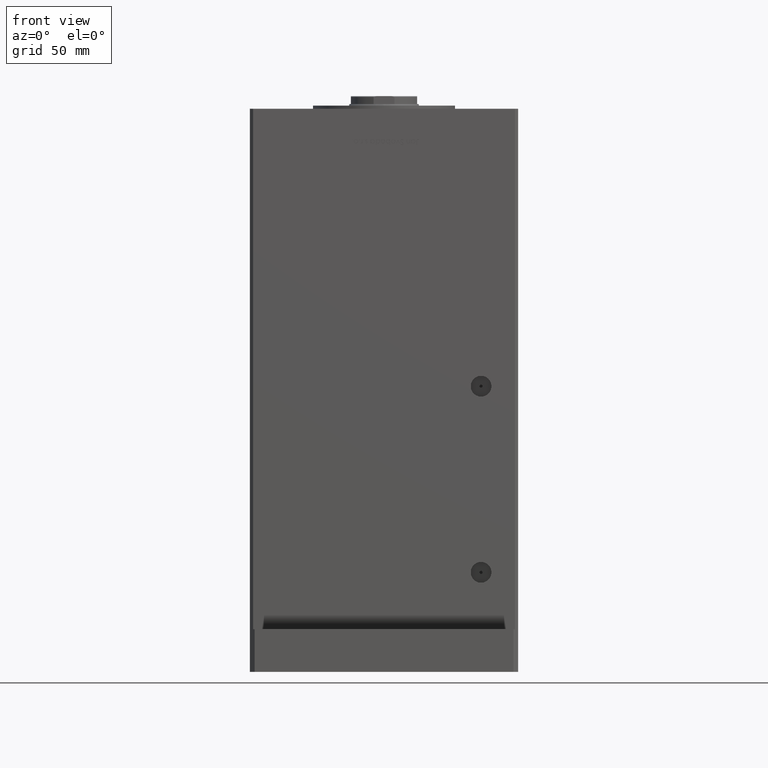
[diagram: clean part render]
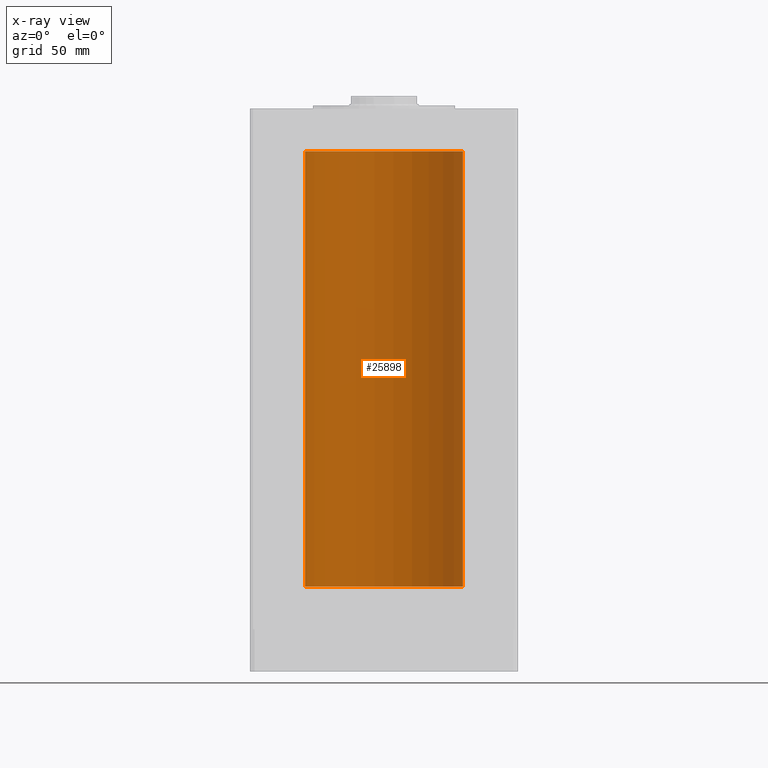
[diagram: x-ray — body ghosted, one internal face saturated and labeled with its STEP entity id]
A machine part, front view, then the same camera in x-ray: the body is ghosted and one INTERNAL B-rep face — a face not visible from any outside direction — is saturated and labeled: STEP entity #25898.
In plain terms, the highlighted cylindrical surface (partial cylindrical patch) has radius 50 mm, axis along (-0, -0, -1).
Its self-contained STEP definition (entity closure, byte-faithful):
#133 = AXIS2_PLACEMENT_3D ( 'NONE', #35104, #51950, #608 ) ;
#608 = DIRECTION ( 'NONE',  ( 1.000000000000000000, 0.000000000000000000, 0.000000000000000000 ) ) ;
#1038 = CARTESIAN_POINT ( 'NONE',  ( 50.00000000000000000, 6.123233995736766085E-15, 0.000000000000000000 ) ) ;
#3923 = ORIENTED_EDGE ( 'NONE', *, *, #49774, .T. ) ;
#4174 = VERTEX_POINT ( 'NONE', #1038 ) ;
#5127 = AXIS2_PLACEMENT_3D ( 'NONE', #44155, #9367, #17922 ) ;
#6267 = DIRECTION ( 'NONE',  ( -0.000000000000000000, -0.000000000000000000, -1.000000000000000000 ) ) ;
#8931 = VERTEX_POINT ( 'NONE', #10318 ) ;
#9308 = EDGE_LOOP ( 'NONE', ( #40017, #21613, #3923, #54597 ) ) ;
#9367 = DIRECTION ( 'NONE',  ( -0.000000000000000000, -0.000000000000000000, -1.000000000000000000 ) ) ;
#10318 = CARTESIAN_POINT ( 'NONE',  ( 50.00000000000000000, 6.123233995736766085E-15, 276.0000000000000000 ) ) ;
#10682 = EDGE_CURVE ( 'NONE', #4174, #27398, #38394, .T. ) ;
#13640 = FACE_OUTER_BOUND ( 'NONE', #9308, .T. ) ;
#17922 = DIRECTION ( 'NONE',  ( -1.000000000000000000, 0.000000000000000000, 0.000000000000000000 ) ) ;
#21613 = ORIENTED_EDGE ( 'NONE', *, *, #25141, .T. ) ;
#24274 = CARTESIAN_POINT ( 'NONE',  ( -50.00000000000000000, 0.000000000000000000, 0.000000000000000000 ) ) ;
#25141 = EDGE_CURVE ( 'NONE', #8931, #31004, #38803, .T. ) ;
#25898 = ADVANCED_FACE ( 'NONE', ( #13640 ), #48161, .F. ) ;
#25981 = CARTESIAN_POINT ( 'NONE',  ( -50.00000000000000000, 0.000000000000000000, 276.0000000000000000 ) ) ;
#26659 = EDGE_CURVE ( 'NONE', #8931, #4174, #33379, .T. ) ;
#27398 = VERTEX_POINT ( 'NONE', #24274 ) ;
#31004 = VERTEX_POINT ( 'NONE', #25981 ) ;
#31938 = LINE ( 'NONE', #45627, #52269 ) ;
#33379 = LINE ( 'NONE', #51050, #45105 ) ;
#33646 = CARTESIAN_POINT ( 'NONE',  ( 0.000000000000000000, 0.000000000000000000, 276.0000000000000000 ) ) ;
#35104 = CARTESIAN_POINT ( 'NONE',  ( 0.000000000000000000, 0.000000000000000000, 0.000000000000000000 ) ) ;
#38394 = CIRCLE ( 'NONE', #133, 50.00000000000000000 ) ;
#38803 = CIRCLE ( 'NONE', #42472, 50.00000000000000000 ) ;
#40017 = ORIENTED_EDGE ( 'NONE', *, *, #26659, .F. ) ;
#41926 = DIRECTION ( 'NONE',  ( -0.000000000000000000, 0.000000000000000000, 1.000000000000000000 ) ) ;
#42472 = AXIS2_PLACEMENT_3D ( 'NONE', #33646, #41926, #46762 ) ;
#44155 = CARTESIAN_POINT ( 'NONE',  ( 0.000000000000000000, 0.000000000000000000, 276.0000000000000000 ) ) ;
#45105 = VECTOR ( 'NONE', #54482, 1000.000000000000000 ) ;
#45627 = CARTESIAN_POINT ( 'NONE',  ( -50.00000000000000000, 0.000000000000000000, 276.0000000000000000 ) ) ;
#46762 = DIRECTION ( 'NONE',  ( 1.000000000000000000, 0.000000000000000000, 0.000000000000000000 ) ) ;
#48161 = CYLINDRICAL_SURFACE ( 'NONE', #5127, 50.00000000000000000 ) ;
#49774 = EDGE_CURVE ( 'NONE', #31004, #27398, #31938, .T. ) ;
#51050 = CARTESIAN_POINT ( 'NONE',  ( 50.00000000000000000, 6.123233995736766085E-15, 276.0000000000000000 ) ) ;
#51950 = DIRECTION ( 'NONE',  ( -0.000000000000000000, 0.000000000000000000, 1.000000000000000000 ) ) ;
#52269 = VECTOR ( 'NONE', #6267, 1000.000000000000000 ) ;
#54482 = DIRECTION ( 'NONE',  ( -0.000000000000000000, -0.000000000000000000, -1.000000000000000000 ) ) ;
#54597 = ORIENTED_EDGE ( 'NONE', *, *, #10682, .F. ) ;